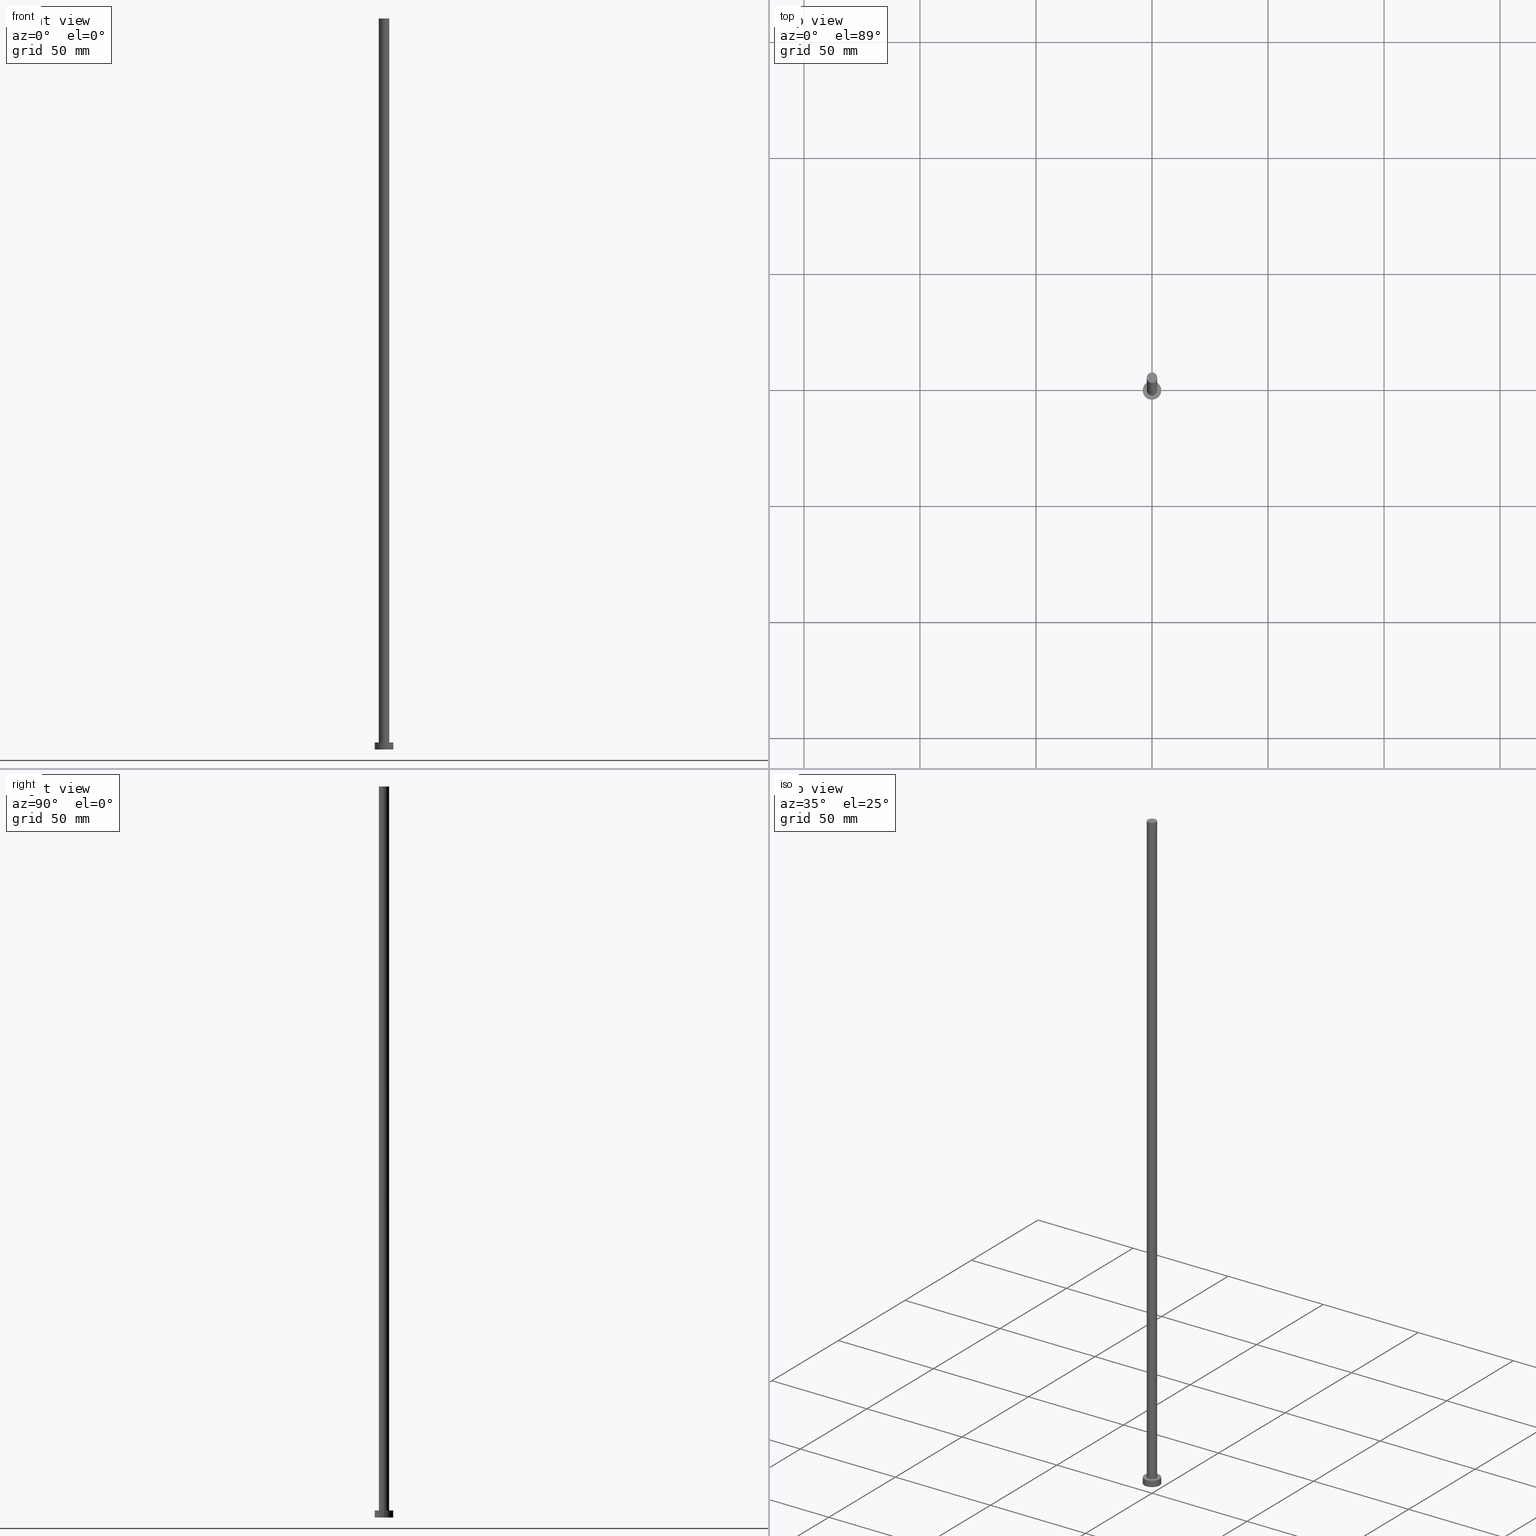
[diagram: canonical four-view strip — front | top / right | iso, engineering-drawing reading convention]
A machine part, canonical four-view strip (front | top / right | iso — engineering-drawing reading convention). The complete STEP part file that produces these views, byte-faithful:
ISO-10303-21;
HEADER;
FILE_DESCRIPTION (( 'STEP AP203' ),
    '1' );
FILE_NAME ('804e.STEP',
    '2023-02-12T11:52:47',
    ( '' ),
    ( '' ),
    'SwSTEP 2.0',
    'SolidWorks 2019',
    '' );
FILE_SCHEMA (( 'CONFIG_CONTROL_DESIGN' ));
ENDSEC;

DATA;
#1 = AXIS2_PLACEMENT_3D ( 'NONE', #250, #71, #134 ) ;
#2 = DIRECTION ( 'NONE',  ( 0.000000000000000000, 0.000000000000000000, 1.000000000000000000 ) ) ;
#3 = DIRECTION ( 'NONE',  ( -0.000000000000000000, -0.000000000000000000, -1.000000000000000000 ) ) ;
#4 = FACE_OUTER_BOUND ( 'NONE', #100, .T. ) ;
#5 = EDGE_CURVE ( 'NONE', #17, #216, #14, .T. ) ;
#6 = CARTESIAN_POINT ( 'NONE',  ( -2.250000000000000000, 0.000000000000000000, 3.000000000000000000 ) ) ;
#7 = DATE_AND_TIME ( #192, #69 ) ;
#8 = PRODUCT_DEFINITION_SHAPE ( 'NONE', 'NONE',  #171 ) ;
#9 = DIRECTION ( 'NONE',  ( -0.000000000000000000, -0.000000000000000000, -1.000000000000000000 ) ) ;
#10 = CARTESIAN_POINT ( 'NONE',  ( -2.250000000000000000, 0.000000000000000000, 315.0000000000000000 ) ) ;
#11 = DIRECTION ( 'NONE',  ( -0.000000000000000000, -0.000000000000000000, -1.000000000000000000 ) ) ;
#12 = CIRCLE ( 'NONE', #58, 4.000000000000000000 ) ;
#13 = ORIENTED_EDGE ( 'NONE', *, *, #5, .F. ) ;
#14 = LINE ( 'NONE', #233, #77 ) ;
#15 = CC_DESIGN_PERSON_AND_ORGANIZATION_ASSIGNMENT ( #88, #170, ( #155 ) ) ;
#16 = DIRECTION ( 'NONE',  ( 1.000000000000000000, 0.000000000000000000, 0.000000000000000000 ) ) ;
#17 = VERTEX_POINT ( 'NONE', #121 ) ;
#18 = ORIENTED_EDGE ( 'NONE', *, *, #219, .F. ) ;
#19 = DIRECTION ( 'NONE',  ( -1.000000000000000000, 0.000000000000000000, 0.000000000000000000 ) ) ;
#20 = APPLICATION_PROTOCOL_DEFINITION ( 'international standard', 'config_control_design', 1994, #64 ) ;
#21 = CARTESIAN_POINT ( 'NONE',  ( 0.000000000000000000, 0.000000000000000000, 315.0000000000000000 ) ) ;
#22 = LOCAL_TIME ( 12, 52, 47.00000000000000000, #91 ) ;
#23 = MANIFOLD_SOLID_BREP ( 'P�idat vysunut�m3', #207 ) ;
#24 = CALENDAR_DATE ( 2023, 12, 2 ) ;
#25 = SECURITY_CLASSIFICATION_LEVEL ( 'unclassified' ) ;
#26 = LINE ( 'NONE', #10, #240 ) ;
#27 = APPROVAL_DATE_TIME ( #112, #96 ) ;
#28 = LOCAL_TIME ( 12, 52, 47.00000000000000000, #133 ) ;
#29 = DIRECTION ( 'NONE',  ( 0.000000000000000000, 0.000000000000000000, 1.000000000000000000 ) ) ;
#30 = APPLICATION_PROTOCOL_DEFINITION ( 'international standard', 'config_control_design', 1994, #165 ) ;
#31 = EDGE_LOOP ( 'NONE', ( #18, #199, #252, #241 ) ) ;
#32 = FACE_OUTER_BOUND ( 'NONE', #78, .T. ) ;
#33 = ORIENTED_EDGE ( 'NONE', *, *, #83, .T. ) ;
#34 = EDGE_CURVE ( 'NONE', #216, #76, #103, .T. ) ;
#35 = LOCAL_TIME ( 12, 52, 47.00000000000000000, #107 ) ;
#36 = EDGE_LOOP ( 'NONE', ( #236, #164 ) ) ;
#37 = CC_DESIGN_PERSON_AND_ORGANIZATION_ASSIGNMENT ( #202, #87, ( #171 ) ) ;
#38 = DIRECTION ( 'NONE',  ( 1.000000000000000000, 0.000000000000000000, 0.000000000000000000 ) ) ;
#39 = MECHANICAL_CONTEXT ( 'NONE', #64, 'mechanical' ) ;
#40 = CARTESIAN_POINT ( 'NONE',  ( 0.000000000000000000, 0.000000000000000000, 0.000000000000000000 ) ) ;
#41 = PERSON_AND_ORGANIZATION_ROLE ( 'creator' ) ;
#42 = DIRECTION ( 'NONE',  ( 1.000000000000000000, 0.000000000000000000, 0.000000000000000000 ) ) ;
#43 = CYLINDRICAL_SURFACE ( 'NONE', #126, 2.250000000000000000 ) ;
#44 = PLANE ( 'NONE',  #1 ) ;
#45 = CALENDAR_DATE ( 2023, 12, 2 ) ;
#46 = DIRECTION ( 'NONE',  ( 1.000000000000000000, 0.000000000000000000, 0.000000000000000000 ) ) ;
#47 = CARTESIAN_POINT ( 'NONE',  ( 0.000000000000000000, 0.000000000000000000, 315.0000000000000000 ) ) ;
#48 = CARTESIAN_POINT ( 'NONE',  ( 0.000000000000000000, 0.000000000000000000, 315.0000000000000000 ) ) ;
#49 = EDGE_CURVE ( 'NONE', #57, #143, #12, .T. ) ;
#50 = DIRECTION ( 'NONE',  ( 0.000000000000000000, 0.000000000000000000, 1.000000000000000000 ) ) ;
#51 = AXIS2_PLACEMENT_3D ( 'NONE', #55, #247, #229 ) ;
#52 = AXIS2_PLACEMENT_3D ( 'NONE', #84, #220, #38 ) ;
#53 = CARTESIAN_POINT ( 'NONE',  ( 0.000000000000000000, 0.000000000000000000, 3.000000000000000000 ) ) ;
#54 = ADVANCED_FACE ( 'NONE', ( #141 ), #145, .T. ) ;
#55 = CARTESIAN_POINT ( 'NONE',  ( 0.000000000000000000, 0.000000000000000000, 3.000000000000000000 ) ) ;
#56 = CARTESIAN_POINT ( 'NONE',  ( 0.000000000000000000, 0.000000000000000000, 3.000000000000000000 ) ) ;
#57 = VERTEX_POINT ( 'NONE', #63 ) ;
#58 = AXIS2_PLACEMENT_3D ( 'NONE', #53, #50, #120 ) ;
#59 = EDGE_LOOP ( 'NONE', ( #217, #186 ) ) ;
#60 = CIRCLE ( 'NONE', #173, 2.250000000000000000 ) ;
#61 = PERSON_AND_ORGANIZATION ( #140, #181 ) ;
#62 = DIRECTION ( 'NONE',  ( 1.000000000000000000, 0.000000000000000000, 0.000000000000000000 ) ) ;
#63 = CARTESIAN_POINT ( 'NONE',  ( -4.000000000000000000, 0.000000000000000000, 3.000000000000000000 ) ) ;
#64 = APPLICATION_CONTEXT ( 'configuration controlled 3d designs of mechanical parts and assemblies' ) ;
#65 = VERTEX_POINT ( 'NONE', #125 ) ;
#66 = ADVANCED_FACE ( 'NONE', ( #4 ), #201, .T. ) ;
#67 = CARTESIAN_POINT ( 'NONE',  ( -4.000000000000000000, 0.000000000000000000, 0.000000000000000000 ) ) ;
#68 = APPROVAL_DATE_TIME ( #7, #253 ) ;
#69 = LOCAL_TIME ( 12, 52, 47.00000000000000000, #249 ) ;
#70 = DATE_TIME_ROLE ( 'creation_date' ) ;
#71 = DIRECTION ( 'NONE',  ( 0.000000000000000000, 0.000000000000000000, 1.000000000000000000 ) ) ;
#72 = ADVANCED_FACE ( 'NONE', ( #148 ), #203, .F. ) ;
#73 = VERTEX_POINT ( 'NONE', #188 ) ;
#74 = APPROVAL_ROLE ( '' ) ;
#75 = AXIS2_PLACEMENT_3D ( 'NONE', #197, #119, #16 ) ;
#76 = VERTEX_POINT ( 'NONE', #6 ) ;
#77 = VECTOR ( 'NONE', #3, 1000.000000000000000 ) ;
#78 = EDGE_LOOP ( 'NONE', ( #123, #234, #179, #81 ) ) ;
#79 = CARTESIAN_POINT ( 'NONE',  ( 0.000000000000000000, 0.000000000000000000, 3.000000000000000000 ) ) ;
#80 = AXIS2_PLACEMENT_3D ( 'NONE', #210, #29, #137 ) ;
#81 = ORIENTED_EDGE ( 'NONE', *, *, #239, .T. ) ;
#82 =( GEOMETRIC_REPRESENTATION_CONTEXT ( 3 ) GLOBAL_UNCERTAINTY_ASSIGNED_CONTEXT ( ( #189 ) ) GLOBAL_UNIT_ASSIGNED_CONTEXT ( ( #212, #157, #95 ) ) REPRESENTATION_CONTEXT ( 'NONE', 'WORKASPACE' ) );
#83 = EDGE_CURVE ( 'NONE', #65, #146, #191, .T. ) ;
#84 = CARTESIAN_POINT ( 'NONE',  ( 0.000000000000000000, 0.000000000000000000, 0.000000000000000000 ) ) ;
#85 = EDGE_LOOP ( 'NONE', ( #177, #211 ) ) ;
#86 = DIRECTION ( 'NONE',  ( -1.000000000000000000, 0.000000000000000000, 0.000000000000000000 ) ) ;
#87 = PERSON_AND_ORGANIZATION_ROLE ( 'creator' ) ;
#88 = PERSON_AND_ORGANIZATION ( #140, #181 ) ;
#89 = CARTESIAN_POINT ( 'NONE',  ( 4.000000000000000000, 4.898587196589412829E-16, 3.000000000000000000 ) ) ;
#90 = FACE_OUTER_BOUND ( 'NONE', #59, .T. ) ;
#91 = COORDINATED_UNIVERSAL_TIME_OFFSET ( 1, 0, .AHEAD. ) ;
#92 = APPROVAL_ROLE ( '' ) ;
#93 = CC_DESIGN_APPROVAL ( #96, ( #155 ) ) ;
#94 = CYLINDRICAL_SURFACE ( 'NONE', #98, 4.000000000000000000 ) ;
#95 =( NAMED_UNIT ( * ) SI_UNIT ( $, .STERADIAN. ) SOLID_ANGLE_UNIT ( ) );
#96 = APPROVAL ( #180, 'NEUR�EN�' ) ;
#97 = AXIS2_PLACEMENT_3D ( 'NONE', #169, #101, #42 ) ;
#98 = AXIS2_PLACEMENT_3D ( 'NONE', #115, #109, #196 ) ;
#99 = EDGE_LOOP ( 'NONE', ( #113, #166 ) ) ;
#100 = EDGE_LOOP ( 'NONE', ( #13, #124, #184, #255 ) ) ;
#101 = DIRECTION ( 'NONE',  ( 0.000000000000000000, 0.000000000000000000, 1.000000000000000000 ) ) ;
#102 = EDGE_CURVE ( 'NONE', #73, #17, #218, .T. ) ;
#103 = CIRCLE ( 'NONE', #221, 2.250000000000000000 ) ;
#104 = CIRCLE ( 'NONE', #75, 2.250000000000000000 ) ;
#105 = DATE_AND_TIME ( #24, #35 ) ;
#106 = DIRECTION ( 'NONE',  ( 1.000000000000000000, 0.000000000000000000, -0.000000000000000000 ) ) ;
#107 = COORDINATED_UNIVERSAL_TIME_OFFSET ( 1, 0, .AHEAD. ) ;
#108 = DIRECTION ( 'NONE',  ( 0.000000000000000000, 0.000000000000000000, 1.000000000000000000 ) ) ;
#109 = DIRECTION ( 'NONE',  ( -0.000000000000000000, -0.000000000000000000, -1.000000000000000000 ) ) ;
#110 = FACE_OUTER_BOUND ( 'NONE', #31, .T. ) ;
#111 = DIRECTION ( 'NONE',  ( -0.000000000000000000, -0.000000000000000000, -1.000000000000000000 ) ) ;
#112 = DATE_AND_TIME ( #205, #127 ) ;
#113 = ORIENTED_EDGE ( 'NONE', *, *, #182, .F. ) ;
#114 = APPROVAL_PERSON_ORGANIZATION ( #223, #135, #230 ) ;
#115 = CARTESIAN_POINT ( 'NONE',  ( 0.000000000000000000, 0.000000000000000000, 3.000000000000000000 ) ) ;
#116 = CC_DESIGN_PERSON_AND_ORGANIZATION_ASSIGNMENT ( #129, #204, ( #117 ) ) ;
#117 = PRODUCT_DEFINITION_FORMATION_WITH_SPECIFIED_SOURCE ( 'LIBOVOLN�', '', #206, .NOT_KNOWN. ) ;
#118 = EDGE_LOOP ( 'NONE', ( #159, #158, #33, #183 ) ) ;
#119 = DIRECTION ( 'NONE',  ( 0.000000000000000000, 0.000000000000000000, 1.000000000000000000 ) ) ;
#120 = DIRECTION ( 'NONE',  ( 1.000000000000000000, 0.000000000000000000, 0.000000000000000000 ) ) ;
#121 = CARTESIAN_POINT ( 'NONE',  ( 2.250000000000000000, 2.755455298081544285E-16, 315.0000000000000000 ) ) ;
#122 = EDGE_CURVE ( 'NONE', #143, #57, #162, .T. ) ;
#123 = ORIENTED_EDGE ( 'NONE', *, *, #235, .F. ) ;
#124 = ORIENTED_EDGE ( 'NONE', *, *, #102, .F. ) ;
#125 = CARTESIAN_POINT ( 'NONE',  ( 4.000000000000000000, 4.898587196589412829E-16, 0.000000000000000000 ) ) ;
#126 = AXIS2_PLACEMENT_3D ( 'NONE', #48, #111, #195 ) ;
#127 = LOCAL_TIME ( 12, 52, 47.00000000000000000, #131 ) ;
#128 = DIRECTION ( 'NONE',  ( 0.000000000000000000, 0.000000000000000000, 1.000000000000000000 ) ) ;
#129 = PERSON_AND_ORGANIZATION ( #140, #181 ) ;
#130 = CARTESIAN_POINT ( 'NONE',  ( 0.000000000000000000, 0.000000000000000000, 315.0000000000000000 ) ) ;
#131 = COORDINATED_UNIVERSAL_TIME_OFFSET ( 1, 0, .AHEAD. ) ;
#132 = VECTOR ( 'NONE', #11, 1000.000000000000000 ) ;
#133 = COORDINATED_UNIVERSAL_TIME_OFFSET ( 1, 0, .AHEAD. ) ;
#134 = DIRECTION ( 'NONE',  ( 1.000000000000000000, 0.000000000000000000, -0.000000000000000000 ) ) ;
#135 = APPROVAL ( #152, 'NEUR�EN�' ) ;
#136 = DIRECTION ( 'NONE',  ( 0.000000000000000000, 0.000000000000000000, 1.000000000000000000 ) ) ;
#137 = DIRECTION ( 'NONE',  ( 1.000000000000000000, 0.000000000000000000, -0.000000000000000000 ) ) ;
#138 = AXIS2_PLACEMENT_3D ( 'NONE', #56, #237, #86 ) ;
#139 = CC_DESIGN_PERSON_AND_ORGANIZATION_ASSIGNMENT ( #242, #190, ( #206 ) ) ;
#140 = PERSON ( 'NEUR�EN�', 'NEUR�EN�', 'NEUR�EN�', ('NEUR�EN�'), ('NEUR�EN�'), ('NEUR�EN�') ) ;
#141 = FACE_OUTER_BOUND ( 'NONE', #118, .T. ) ;
#142 = CC_DESIGN_SECURITY_CLASSIFICATION ( #155, ( #117 ) ) ;
#143 = VERTEX_POINT ( 'NONE', #89 ) ;
#144 = ADVANCED_BREP_SHAPE_REPRESENTATION ( '804e', ( #23, #52 ), #82 ) ;
#145 = CYLINDRICAL_SURFACE ( 'NONE', #138, 4.000000000000000000 ) ;
#146 = VERTEX_POINT ( 'NONE', #67 ) ;
#147 = CC_DESIGN_DATE_AND_TIME_ASSIGNMENT ( #225, #176, ( #155 ) ) ;
#148 = FACE_OUTER_BOUND ( 'NONE', #85, .T. ) ;
#149 = EDGE_CURVE ( 'NONE', #57, #146, #178, .T. ) ;
#150 = CARTESIAN_POINT ( 'NONE',  ( 4.000000000000000000, 4.898587196589412829E-16, 3.000000000000000000 ) ) ;
#151 = CALENDAR_DATE ( 2023, 12, 2 ) ;
#152 = APPROVAL_STATUS ( 'not_yet_approved' ) ;
#153 = CARTESIAN_POINT ( 'NONE',  ( 0.000000000000000000, 0.000000000000000000, 0.000000000000000000 ) ) ;
#154 = ADVANCED_FACE ( 'NONE', ( #110 ), #43, .T. ) ;
#155 = SECURITY_CLASSIFICATION ( '', '', #25 ) ;
#156 = ADVANCED_FACE ( 'NONE', ( #251, #90 ), #209, .T. ) ;
#157 =( NAMED_UNIT ( * ) PLANE_ANGLE_UNIT ( ) SI_UNIT ( $, .RADIAN. ) );
#158 = ORIENTED_EDGE ( 'NONE', *, *, #235, .T. ) ;
#159 = ORIENTED_EDGE ( 'NONE', *, *, #122, .F. ) ;
#160 = DIRECTION ( 'NONE',  ( 1.000000000000000000, 0.000000000000000000, 0.000000000000000000 ) ) ;
#161 = DIRECTION ( 'NONE',  ( 0.000000000000000000, 0.000000000000000000, 1.000000000000000000 ) ) ;
#162 = CIRCLE ( 'NONE', #51, 4.000000000000000000 ) ;
#163 = DIRECTION ( 'NONE',  ( -0.000000000000000000, -0.000000000000000000, -1.000000000000000000 ) ) ;
#164 = ORIENTED_EDGE ( 'NONE', *, *, #219, .T. ) ;
#165 = APPLICATION_CONTEXT ( 'configuration controlled 3d designs of mechanical parts and assemblies' ) ;
#166 = ORIENTED_EDGE ( 'NONE', *, *, #34, .F. ) ;
#167 = ADVANCED_FACE ( 'NONE', ( #32 ), #94, .T. ) ;
#168 = DATE_AND_TIME ( #45, #28 ) ;
#169 = CARTESIAN_POINT ( 'NONE',  ( 0.000000000000000000, 0.000000000000000000, 0.000000000000000000 ) ) ;
#170 = PERSON_AND_ORGANIZATION_ROLE ( 'classification_officer' ) ;
#171 = PRODUCT_DEFINITION ( 'NEZN�M�', '', #117, #245 ) ;
#172 = CARTESIAN_POINT ( 'NONE',  ( 2.250000000000000000, 2.755455298081544285E-16, 3.000000000000000000 ) ) ;
#173 = AXIS2_PLACEMENT_3D ( 'NONE', #47, #108, #193 ) ;
#174 = SHAPE_DEFINITION_REPRESENTATION ( #8, #144 ) ;
#175 = FACE_OUTER_BOUND ( 'NONE', #36, .T. ) ;
#176 = DATE_TIME_ROLE ( 'classification_date' ) ;
#177 = ORIENTED_EDGE ( 'NONE', *, *, #239, .F. ) ;
#178 = LINE ( 'NONE', #227, #132 ) ;
#179 = ORIENTED_EDGE ( 'NONE', *, *, #149, .T. ) ;
#180 = APPROVAL_STATUS ( 'not_yet_approved' ) ;
#181 = ORGANIZATION ( 'NEUR�EN�', 'NEUR�EN�', '' ) ;
#182 = EDGE_CURVE ( 'NONE', #76, #216, #104, .T. ) ;
#183 = ORIENTED_EDGE ( 'NONE', *, *, #149, .F. ) ;
#184 = ORIENTED_EDGE ( 'NONE', *, *, #187, .T. ) ;
#185 = APPROVAL_PERSON_ORGANIZATION ( #231, #96, #74 ) ;
#186 = ORIENTED_EDGE ( 'NONE', *, *, #122, .T. ) ;
#187 = EDGE_CURVE ( 'NONE', #73, #76, #26, .T. ) ;
#188 = CARTESIAN_POINT ( 'NONE',  ( -2.250000000000000000, 0.000000000000000000, 315.0000000000000000 ) ) ;
#189 = UNCERTAINTY_MEASURE_WITH_UNIT (LENGTH_MEASURE( 1.000000000000000082E-05 ), #212, 'distance_accuracy_value', 'NONE');
#190 = PERSON_AND_ORGANIZATION_ROLE ( 'design_owner' ) ;
#191 = CIRCLE ( 'NONE', #97, 4.000000000000000000 ) ;
#192 = CALENDAR_DATE ( 2023, 12, 2 ) ;
#193 = DIRECTION ( 'NONE',  ( 1.000000000000000000, 0.000000000000000000, 0.000000000000000000 ) ) ;
#194 = LINE ( 'NONE', #150, #215 ) ;
#195 = DIRECTION ( 'NONE',  ( -1.000000000000000000, 0.000000000000000000, 0.000000000000000000 ) ) ;
#196 = DIRECTION ( 'NONE',  ( -1.000000000000000000, 0.000000000000000000, 0.000000000000000000 ) ) ;
#197 = CARTESIAN_POINT ( 'NONE',  ( 0.000000000000000000, 0.000000000000000000, 3.000000000000000000 ) ) ;
#198 = AXIS2_PLACEMENT_3D ( 'NONE', #21, #163, #19 ) ;
#199 = ORIENTED_EDGE ( 'NONE', *, *, #5, .T. ) ;
#200 = CC_DESIGN_DATE_AND_TIME_ASSIGNMENT ( #168, #70, ( #171 ) ) ;
#201 = CYLINDRICAL_SURFACE ( 'NONE', #198, 2.250000000000000000 ) ;
#202 = PERSON_AND_ORGANIZATION ( #140, #181 ) ;
#203 = PLANE ( 'NONE',  #232 ) ;
#204 = PERSON_AND_ORGANIZATION_ROLE ( 'design_supplier' ) ;
#205 = CALENDAR_DATE ( 2023, 12, 2 ) ;
#206 = PRODUCT ( '804e', '804e', '', ( #39 ) ) ;
#207 = CLOSED_SHELL ( 'NONE', ( #154, #54, #167, #156, #72, #66, #224 ) ) ;
#208 = CC_DESIGN_PERSON_AND_ORGANIZATION_ASSIGNMENT ( #61, #41, ( #117 ) ) ;
#209 = PLANE ( 'NONE',  #80 ) ;
#210 = CARTESIAN_POINT ( 'NONE',  ( 0.000000000000000000, 0.000000000000000000, 3.000000000000000000 ) ) ;
#211 = ORIENTED_EDGE ( 'NONE', *, *, #83, .F. ) ;
#212 =( LENGTH_UNIT ( ) NAMED_UNIT ( * ) SI_UNIT ( .MILLI., .METRE. ) );
#213 = CC_DESIGN_APPROVAL ( #135, ( #117 ) ) ;
#214 = PRODUCT_RELATED_PRODUCT_CATEGORY ( 'detail', '', ( #206 ) ) ;
#215 = VECTOR ( 'NONE', #9, 1000.000000000000000 ) ;
#216 = VERTEX_POINT ( 'NONE', #172 ) ;
#217 = ORIENTED_EDGE ( 'NONE', *, *, #49, .T. ) ;
#218 = CIRCLE ( 'NONE', #238, 2.250000000000000000 ) ;
#219 = EDGE_CURVE ( 'NONE', #17, #73, #60, .T. ) ;
#220 = DIRECTION ( 'NONE',  ( 0.000000000000000000, 0.000000000000000000, 1.000000000000000000 ) ) ;
#221 = AXIS2_PLACEMENT_3D ( 'NONE', #79, #161, #46 ) ;
#222 = AXIS2_PLACEMENT_3D ( 'NONE', #153, #136, #62 ) ;
#223 = PERSON_AND_ORGANIZATION ( #140, #181 ) ;
#224 = ADVANCED_FACE ( 'NONE', ( #175 ), #44, .T. ) ;
#225 = DATE_AND_TIME ( #151, #22 ) ;
#226 = APPROVAL_STATUS ( 'not_yet_approved' ) ;
#227 = CARTESIAN_POINT ( 'NONE',  ( -4.000000000000000000, 0.000000000000000000, 3.000000000000000000 ) ) ;
#228 = CC_DESIGN_APPROVAL ( #253, ( #171 ) ) ;
#229 = DIRECTION ( 'NONE',  ( 1.000000000000000000, 0.000000000000000000, 0.000000000000000000 ) ) ;
#230 = APPROVAL_ROLE ( '' ) ;
#231 = PERSON_AND_ORGANIZATION ( #140, #181 ) ;
#232 = AXIS2_PLACEMENT_3D ( 'NONE', #40, #128, #106 ) ;
#233 = CARTESIAN_POINT ( 'NONE',  ( 2.250000000000000000, 2.755455298081544285E-16, 315.0000000000000000 ) ) ;
#234 = ORIENTED_EDGE ( 'NONE', *, *, #49, .F. ) ;
#235 = EDGE_CURVE ( 'NONE', #143, #65, #194, .T. ) ;
#236 = ORIENTED_EDGE ( 'NONE', *, *, #102, .T. ) ;
#237 = DIRECTION ( 'NONE',  ( -0.000000000000000000, -0.000000000000000000, -1.000000000000000000 ) ) ;
#238 = AXIS2_PLACEMENT_3D ( 'NONE', #130, #2, #160 ) ;
#239 = EDGE_CURVE ( 'NONE', #146, #65, #248, .T. ) ;
#240 = VECTOR ( 'NONE', #244, 1000.000000000000000 ) ;
#241 = ORIENTED_EDGE ( 'NONE', *, *, #187, .F. ) ;
#242 = PERSON_AND_ORGANIZATION ( #140, #181 ) ;
#243 = APPROVAL_DATE_TIME ( #105, #135 ) ;
#244 = DIRECTION ( 'NONE',  ( -0.000000000000000000, -0.000000000000000000, -1.000000000000000000 ) ) ;
#245 = DESIGN_CONTEXT ( 'detailed design', #165, 'design' ) ;
#246 = PERSON_AND_ORGANIZATION ( #140, #181 ) ;
#247 = DIRECTION ( 'NONE',  ( 0.000000000000000000, 0.000000000000000000, 1.000000000000000000 ) ) ;
#248 = CIRCLE ( 'NONE', #222, 4.000000000000000000 ) ;
#249 = COORDINATED_UNIVERSAL_TIME_OFFSET ( 1, 0, .AHEAD. ) ;
#250 = CARTESIAN_POINT ( 'NONE',  ( 0.000000000000000000, 0.000000000000000000, 315.0000000000000000 ) ) ;
#251 = FACE_BOUND ( 'NONE', #99, .T. ) ;
#252 = ORIENTED_EDGE ( 'NONE', *, *, #34, .T. ) ;
#253 = APPROVAL ( #226, 'NEUR�EN�' ) ;
#254 = APPROVAL_PERSON_ORGANIZATION ( #246, #253, #92 ) ;
#255 = ORIENTED_EDGE ( 'NONE', *, *, #182, .T. ) ;
ENDSEC;
END-ISO-10303-21;
